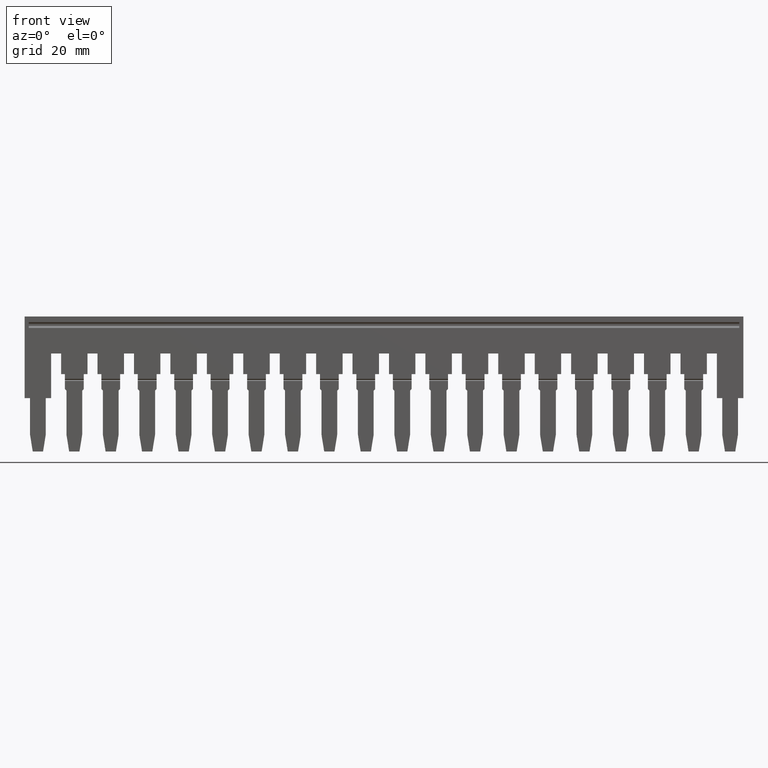
[diagram: clean part render]
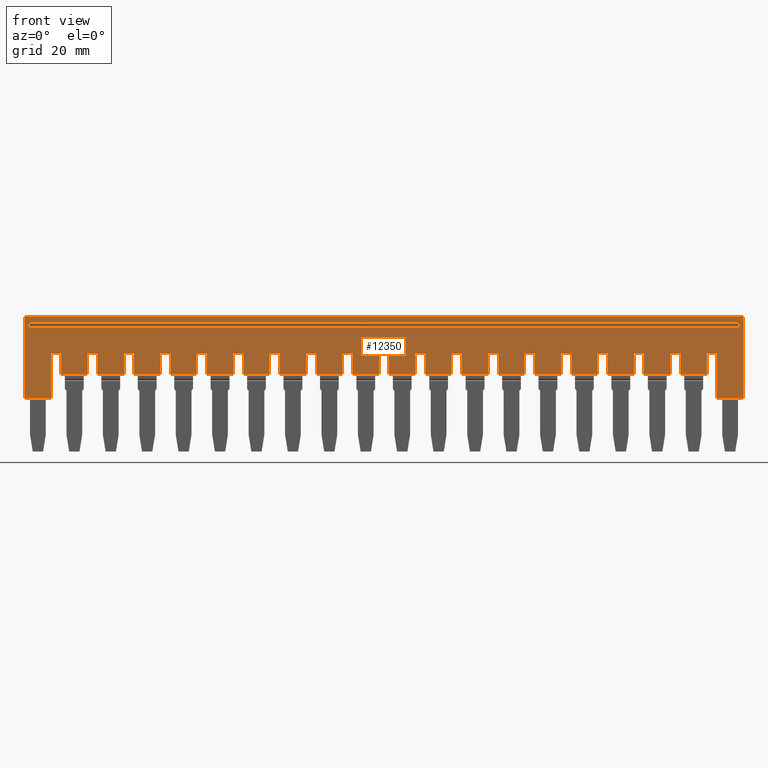
[diagram: same view with one face highlighted and labeled with its STEP entity id]
A machine part, front view. The second image highlights one B-rep face of the part: STEP entity #12350.
In plain terms, the highlighted planar face has unit normal (0, 1, -0).
Its self-contained STEP definition (entity closure, byte-faithful):
#1340=CARTESIAN_POINT('',(2.60716722168537,-23.0749999999984,
26.4950159999974));
#1350=DIRECTION('',(-2.22044604925031E-16,-2.22044604925031E-16,-1.));
#1360=VECTOR('',#1350,1.);
#1370=LINE('',#1340,#1360);
#1380=CARTESIAN_POINT('',(2.60716722168537,-23.0749999999984,
17.3099999999987));
#1390=VERTEX_POINT('',#1380);
#1400=CARTESIAN_POINT('',(2.60716722168537,-23.0749999999984,
12.8099999999987));
#1410=VERTEX_POINT('',#1400);
#1420=EDGE_CURVE('',#1390,#1410,#1370,.T.);
#2390=CARTESIAN_POINT('',(2.60716722168537,-10.1410254037828,
13.5099999999987));
#2400=VERTEX_POINT('',#2390);
#2570=CARTESIAN_POINT('',(2.60716722168537,-11.1389702342646,
13.5099999999987));
#2580=VERTEX_POINT('',#2570);
#2610=CARTESIAN_POINT('',(2.60716722168537,-12.605123999998,
13.5099999999987));
#2620=DIRECTION('',(4.93038065763132E-32,-1.,2.22044604925031E-16));
#2630=VECTOR('',#2620,1.);
#2640=LINE('',#2610,#2630);
#2650=EDGE_CURVE('',#2400,#2580,#2640,.T.);
#5720=CARTESIAN_POINT('',(2.60716722168537,-7.23265099999797,
39.7999898000482));
#5730=DIRECTION('',(1.,0.,-2.22044604925031E-16));
#5740=DIRECTION('',(4.93038065763132E-32,-1.,2.22044604925031E-16));
#5750=AXIS2_PLACEMENT_3D('',#5720,#5730,#5740);
#5760=PLANE('',#5750);
#5770=CARTESIAN_POINT('',(2.6071672216854,-12.605123999998,
135.109999999999));
#5780=DIRECTION('',(-4.93038065763132E-32,1.,-2.22044604925031E-16));
#5790=VECTOR('',#5780,1.);
#5800=LINE('',#5770,#5790);
#5810=CARTESIAN_POINT('',(2.60716722168539,-23.0749999999984,
135.109999999999));
#5820=VERTEX_POINT('',#5810);
#5830=CARTESIAN_POINT('',(2.60716722168539,-9.17499999999835,
135.109999999999));
#5840=VERTEX_POINT('',#5830);
#5850=EDGE_CURVE('',#5820,#5840,#5800,.T.);
#5860=ORIENTED_EDGE('',*,*,#5850,.T.);
#5870=CARTESIAN_POINT('',(2.60716722168539,-23.0749999999984,
125.695015999997));
#5880=DIRECTION('',(-2.22044604925031E-16,-2.22044604925031E-16,-1.));
#5890=VECTOR('',#5880,1.);
#5900=LINE('',#5870,#5890);
#5910=CARTESIAN_POINT('',(2.60716722168539,-23.0749999999984,
130.609999999999));
#5920=VERTEX_POINT('',#5910);
#5930=EDGE_CURVE('',#5820,#5920,#5900,.T.);
#5940=ORIENTED_EDGE('',*,*,#5930,.F.);
#5950=CARTESIAN_POINT('',(2.6071672216854,-12.605123999998,
130.609999999999));
#5960=DIRECTION('',(4.93038065763132E-32,-1.,2.22044604925031E-16));
#5970=VECTOR('',#5960,1.);
#5980=LINE('',#5950,#5970);
#5990=CARTESIAN_POINT('',(2.60716722168539,-15.4749999999984,
130.609999999999));
#6000=VERTEX_POINT('',#5990);
#6010=EDGE_CURVE('',#6000,#5920,#5980,.T.);
#6020=ORIENTED_EDGE('',*,*,#6010,.T.);
#6030=CARTESIAN_POINT('',(2.6071672216854,-15.4749999999984,
131.845015999997));
#6040=DIRECTION('',(2.22044604925031E-16,2.22044604925031E-16,1.));
#6050=VECTOR('',#6040,1.);
#6060=LINE('',#6030,#6050);
#6070=CARTESIAN_POINT('',(2.60716722168539,-15.4749999999984,
128.909999999999));
#6080=VERTEX_POINT('',#6070);
#6090=EDGE_CURVE('',#6080,#6000,#6060,.T.);
#6100=ORIENTED_EDGE('',*,*,#6090,.T.);
#6110=CARTESIAN_POINT('',(2.60716722168539,2.04458672214969E-12,
128.909999999999));
#6120=DIRECTION('',(-4.93038065763132E-32,1.,-2.22044604925031E-16));
#6130=VECTOR('',#6120,1.);
#6140=LINE('',#6110,#6130);
#6150=CARTESIAN_POINT('',(2.60716722168539,-18.9749999999984,
128.909999999999));
#6160=VERTEX_POINT('',#6150);
#6170=EDGE_CURVE('',#6160,#6080,#6140,.T.);
#6180=ORIENTED_EDGE('',*,*,#6170,.T.);
#6190=CARTESIAN_POINT('',(2.6071672216854,-18.9749999999983,
172.719999999997));
#6200=DIRECTION('',(-2.22044604925031E-16,-2.22044604925031E-16,-1.));
#6210=VECTOR('',#6200,1.);
#6220=LINE('',#6190,#6210);
#6230=CARTESIAN_POINT('',(2.60716722168539,-18.9749999999984,
124.409999999999));
#6240=VERTEX_POINT('',#6230);
#6250=EDGE_CURVE('',#6160,#6240,#6220,.T.);
#6260=ORIENTED_EDGE('',*,*,#6250,.F.);
#6270=CARTESIAN_POINT('',(2.60716722168539,2.04281036531029E-12,
124.409999999999));
#6280=DIRECTION('',(4.93038065763132E-32,-1.,2.22044604925031E-16));
#6290=VECTOR('',#6280,1.);
#6300=LINE('',#6270,#6290);
#6310=CARTESIAN_POINT('',(2.60716722168539,-15.4749999999984,
124.409999999999));
#6320=VERTEX_POINT('',#6310);
#6330=EDGE_CURVE('',#6320,#6240,#6300,.T.);
#6340=ORIENTED_EDGE('',*,*,#6330,.T.);
#6350=CARTESIAN_POINT('',(2.6071672216854,-15.4749999999984,
125.645015999997));
#6360=DIRECTION('',(2.22044604925031E-16,2.22044604925031E-16,1.));
#6370=VECTOR('',#6360,1.);
#6380=LINE('',#6350,#6370);
#6390=CARTESIAN_POINT('',(2.60716722168539,-15.4749999999984,
122.709999999999));
#6400=VERTEX_POINT('',#6390);
#6410=EDGE_CURVE('',#6400,#6320,#6380,.T.);
#6420=ORIENTED_EDGE('',*,*,#6410,.T.);
#6430=CARTESIAN_POINT('',(2.60716722168539,2.04281036531029E-12,
122.709999999999));
#6440=DIRECTION('',(-4.93038065763132E-32,1.,-2.22044604925031E-16));
#6450=VECTOR('',#6440,1.);
#6460=LINE('',#6430,#6450);
#6470=CARTESIAN_POINT('',(2.60716722168539,-18.9749999999984,
122.709999999999));
#6480=VERTEX_POINT('',#6470);
#6490=EDGE_CURVE('',#6480,#6400,#6460,.T.);
#6500=ORIENTED_EDGE('',*,*,#6490,.T.);
#6510=CARTESIAN_POINT('',(2.6071672216854,-18.9749999999983,
166.519999999997));
#6520=DIRECTION('',(-2.22044604925031E-16,-2.22044604925031E-16,-1.));
#6530=VECTOR('',#6520,1.);
#6540=LINE('',#6510,#6530);
#6550=CARTESIAN_POINT('',(2.60716722168539,-18.9749999999984,
118.209999999999));
#6560=VERTEX_POINT('',#6550);
#6570=EDGE_CURVE('',#6480,#6560,#6540,.T.);
#6580=ORIENTED_EDGE('',*,*,#6570,.F.);
#6590=CARTESIAN_POINT('',(2.60716722168539,2.04281036531029E-12,
118.209999999999));
#6600=DIRECTION('',(4.93038065763132E-32,-1.,2.22044604925031E-16));
#6610=VECTOR('',#6600,1.);
#6620=LINE('',#6590,#6610);
#6630=CARTESIAN_POINT('',(2.60716722168539,-15.4749999999984,
118.209999999999));
#6640=VERTEX_POINT('',#6630);
#6650=EDGE_CURVE('',#6640,#6560,#6620,.T.);
#6660=ORIENTED_EDGE('',*,*,#6650,.T.);
#6670=CARTESIAN_POINT('',(2.6071672216854,-15.4749999999984,
119.445015999997));
#6680=DIRECTION('',(2.22044604925031E-16,2.22044604925031E-16,1.));
#6690=VECTOR('',#6680,1.);
#6700=LINE('',#6670,#6690);
#6710=CARTESIAN_POINT('',(2.60716722168539,-15.4749999999984,
116.509999999999));
#6720=VERTEX_POINT('',#6710);
#6730=EDGE_CURVE('',#6720,#6640,#6700,.T.);
#6740=ORIENTED_EDGE('',*,*,#6730,.T.);
#6750=CARTESIAN_POINT('',(2.60716722168539,2.04103400847089E-12,
116.509999999999));
#6760=DIRECTION('',(-4.93038065763132E-32,1.,-2.22044604925031E-16));
#6770=VECTOR('',#6760,1.);
#6780=LINE('',#6750,#6770);
#6790=CARTESIAN_POINT('',(2.60716722168539,-18.9749999999984,
116.509999999999));
#6800=VERTEX_POINT('',#6790);
#6810=EDGE_CURVE('',#6800,#6720,#6780,.T.);
#6820=ORIENTED_EDGE('',*,*,#6810,.T.);
#6830=CARTESIAN_POINT('',(2.6071672216854,-18.9749999999983,
160.319999999997));
#6840=DIRECTION('',(-2.22044604925031E-16,-2.22044604925031E-16,-1.));
#6850=VECTOR('',#6840,1.);
#6860=LINE('',#6830,#6850);
#6870=CARTESIAN_POINT('',(2.60716722168539,-18.9749999999984,
112.009999999999));
#6880=VERTEX_POINT('',#6870);
#6890=EDGE_CURVE('',#6800,#6880,#6860,.T.);
#6900=ORIENTED_EDGE('',*,*,#6890,.F.);
#6910=CARTESIAN_POINT('',(2.60716722168539,2.04103400847089E-12,
112.009999999999));
#6920=DIRECTION('',(4.93038065763132E-32,-1.,2.22044604925031E-16));
#6930=VECTOR('',#6920,1.);
#6940=LINE('',#6910,#6930);
#6950=CARTESIAN_POINT('',(2.60716722168539,-15.4749999999984,
112.009999999999));
#6960=VERTEX_POINT('',#6950);
#6970=EDGE_CURVE('',#6960,#6880,#6940,.T.);
#6980=ORIENTED_EDGE('',*,*,#6970,.T.);
#6990=CARTESIAN_POINT('',(2.6071672216854,-15.4749999999984,
119.445015999997));
#7000=DIRECTION('',(2.22044604925031E-16,2.22044604925031E-16,1.));
#7010=VECTOR('',#7000,1.);
#7020=LINE('',#6990,#7010);
#7030=CARTESIAN_POINT('',(2.60716722168539,-15.4749999999984,
110.309999999999));
#7040=VERTEX_POINT('',#7030);
#7050=EDGE_CURVE('',#7040,#6960,#7020,.T.);
#7060=ORIENTED_EDGE('',*,*,#7050,.T.);
#7070=CARTESIAN_POINT('',(2.60716722168539,2.04103400847089E-12,
110.309999999999));
#7080=DIRECTION('',(-4.93038065763132E-32,1.,-2.22044604925031E-16));
#7090=VECTOR('',#7080,1.);
#7100=LINE('',#7070,#7090);
#7110=CARTESIAN_POINT('',(2.60716722168539,-18.9749999999984,
110.309999999999));
#7120=VERTEX_POINT('',#7110);
#7130=EDGE_CURVE('',#7120,#7040,#7100,.T.);
#7140=ORIENTED_EDGE('',*,*,#7130,.T.);
#7150=CARTESIAN_POINT('',(2.6071672216854,-18.9749999999983,
154.119999999997));
#7160=DIRECTION('',(-2.22044604925031E-16,-2.22044604925031E-16,-1.));
#7170=VECTOR('',#7160,1.);
#7180=LINE('',#7150,#7170);
#7190=CARTESIAN_POINT('',(2.60716722168539,-18.9749999999984,
105.809999999999));
#7200=VERTEX_POINT('',#7190);
#7210=EDGE_CURVE('',#7120,#7200,#7180,.T.);
#7220=ORIENTED_EDGE('',*,*,#7210,.F.);
#7230=CARTESIAN_POINT('',(2.60716722168539,2.03925765163149E-12,
105.809999999999));
#7240=DIRECTION('',(4.93038065763132E-32,-1.,2.22044604925031E-16));
#7250=VECTOR('',#7240,1.);
#7260=LINE('',#7230,#7250);
#7270=CARTESIAN_POINT('',(2.60716722168539,-15.4749999999984,
105.809999999999));
#7280=VERTEX_POINT('',#7270);
#7290=EDGE_CURVE('',#7280,#7200,#7260,.T.);
#7300=ORIENTED_EDGE('',*,*,#7290,.T.);
#7310=CARTESIAN_POINT('',(2.6071672216854,-15.4749999999984,
107.045015999997));
#7320=DIRECTION('',(2.22044604925031E-16,2.22044604925031E-16,1.));
#7330=VECTOR('',#7320,1.);
#7340=LINE('',#7310,#7330);
#7350=CARTESIAN_POINT('',(2.60716722168539,-15.4749999999984,
104.109999999999));
#7360=VERTEX_POINT('',#7350);
#7370=EDGE_CURVE('',#7360,#7280,#7340,.T.);
#7380=ORIENTED_EDGE('',*,*,#7370,.T.);
#7390=CARTESIAN_POINT('',(2.60716722168539,2.03925765163149E-12,
104.109999999999));
#7400=DIRECTION('',(-4.93038065763132E-32,1.,-2.22044604925031E-16));
#7410=VECTOR('',#7400,1.);
#7420=LINE('',#7390,#7410);
#7430=CARTESIAN_POINT('',(2.60716722168539,-18.9749999999984,
104.109999999999));
#7440=VERTEX_POINT('',#7430);
#7450=EDGE_CURVE('',#7440,#7360,#7420,.T.);
#7460=ORIENTED_EDGE('',*,*,#7450,.T.);
#7470=CARTESIAN_POINT('',(2.6071672216854,-18.9749999999983,
147.919999999997));
#7480=DIRECTION('',(-2.22044604925031E-16,-2.22044604925031E-16,-1.));
#7490=VECTOR('',#7480,1.);
#7500=LINE('',#7470,#7490);
#7510=CARTESIAN_POINT('',(2.60716722168539,-18.9749999999984,
99.6099999999987));
#7520=VERTEX_POINT('',#7510);
#7530=EDGE_CURVE('',#7440,#7520,#7500,.T.);
#7540=ORIENTED_EDGE('',*,*,#7530,.F.);
#7550=CARTESIAN_POINT('',(2.60716722168539,2.03748129479209E-12,
99.6099999999986));
#7560=DIRECTION('',(4.93038065763132E-32,-1.,2.22044604925031E-16));
#7570=VECTOR('',#7560,1.);
#7580=LINE('',#7550,#7570);
#7590=CARTESIAN_POINT('',(2.60716722168539,-15.4749999999984,
99.6099999999987));
#7600=VERTEX_POINT('',#7590);
#7610=EDGE_CURVE('',#7600,#7520,#7580,.T.);
#7620=ORIENTED_EDGE('',*,*,#7610,.T.);
#7630=CARTESIAN_POINT('',(2.6071672216854,-15.4749999999984,
100.845015999997));
#7640=DIRECTION('',(2.22044604925031E-16,2.22044604925031E-16,1.));
#7650=VECTOR('',#7640,1.);
#7660=LINE('',#7630,#7650);
#7670=CARTESIAN_POINT('',(2.60716722168539,-15.4749999999984,
97.9099999999987));
#7680=VERTEX_POINT('',#7670);
#7690=EDGE_CURVE('',#7680,#7600,#7660,.T.);
#7700=ORIENTED_EDGE('',*,*,#7690,.T.);
#7710=CARTESIAN_POINT('',(2.60716722168539,2.03748129479209E-12,
97.9099999999987));
#7720=DIRECTION('',(-4.93038065763132E-32,1.,-2.22044604925031E-16));
#7730=VECTOR('',#7720,1.);
#7740=LINE('',#7710,#7730);
#7750=CARTESIAN_POINT('',(2.60716722168539,-18.9749999999984,
97.9099999999987));
#7760=VERTEX_POINT('',#7750);
#7770=EDGE_CURVE('',#7760,#7680,#7740,.T.);
#7780=ORIENTED_EDGE('',*,*,#7770,.T.);
#7790=CARTESIAN_POINT('',(2.6071672216854,-18.9749999999984,
141.719999999997));
#7800=DIRECTION('',(-2.22044604925031E-16,-2.22044604925031E-16,-1.));
#7810=VECTOR('',#7800,1.);
#7820=LINE('',#7790,#7810);
#7830=CARTESIAN_POINT('',(2.60716722168539,-18.9749999999984,
93.4099999999987));
#7840=VERTEX_POINT('',#7830);
#7850=EDGE_CURVE('',#7760,#7840,#7820,.T.);
#7860=ORIENTED_EDGE('',*,*,#7850,.F.);
#7870=CARTESIAN_POINT('',(2.60716722168539,2.03570493795269E-12,
93.4099999999987));
#7880=DIRECTION('',(4.93038065763132E-32,-1.,2.22044604925031E-16));
#7890=VECTOR('',#7880,1.);
#7900=LINE('',#7870,#7890);
#7910=CARTESIAN_POINT('',(2.60716722168539,-15.4749999999984,
93.4099999999987));
#7920=VERTEX_POINT('',#7910);
#7930=EDGE_CURVE('',#7920,#7840,#7900,.T.);
#7940=ORIENTED_EDGE('',*,*,#7930,.T.);
#7950=CARTESIAN_POINT('',(2.60716722168539,-15.4749999999984,
100.845015999997));
#7960=DIRECTION('',(2.22044604925031E-16,2.22044604925031E-16,1.));
#7970=VECTOR('',#7960,1.);
#7980=LINE('',#7950,#7970);
#7990=CARTESIAN_POINT('',(2.60716722168539,-15.4749999999984,
91.7099999999987));
#8000=VERTEX_POINT('',#7990);
#8010=EDGE_CURVE('',#8000,#7920,#7980,.T.);
#8020=ORIENTED_EDGE('',*,*,#8010,.T.);
#8030=CARTESIAN_POINT('',(2.60716722168539,2.03570493795269E-12,
91.7099999999987));
#8040=DIRECTION('',(-4.93038065763132E-32,1.,-2.22044604925031E-16));
#8050=VECTOR('',#8040,1.);
#8060=LINE('',#8030,#8050);
#8070=CARTESIAN_POINT('',(2.60716722168539,-18.9749999999984,
91.7099999999987));
#8080=VERTEX_POINT('',#8070);
#8090=EDGE_CURVE('',#8080,#8000,#8060,.T.);
#8100=ORIENTED_EDGE('',*,*,#8090,.T.);
#8110=CARTESIAN_POINT('',(2.60716722168539,-18.9749999999984,
135.519999999997));
#8120=DIRECTION('',(-2.22044604925031E-16,-2.22044604925031E-16,-1.));
#8130=VECTOR('',#8120,1.);
#8140=LINE('',#8110,#8130);
#8150=CARTESIAN_POINT('',(2.60716722168538,-18.9749999999984,
87.2099999999987));
#8160=VERTEX_POINT('',#8150);
#8170=EDGE_CURVE('',#8080,#8160,#8140,.T.);
#8180=ORIENTED_EDGE('',*,*,#8170,.F.);
#8190=CARTESIAN_POINT('',(2.60716722168538,2.03570493795269E-12,
87.2099999999987));
#8200=DIRECTION('',(4.93038065763132E-32,-1.,2.22044604925031E-16));
#8210=VECTOR('',#8200,1.);
#8220=LINE('',#8190,#8210);
#8230=CARTESIAN_POINT('',(2.60716722168538,-15.4749999999984,
87.2099999999987));
#8240=VERTEX_POINT('',#8230);
#8250=EDGE_CURVE('',#8240,#8160,#8220,.T.);
#8260=ORIENTED_EDGE('',*,*,#8250,.T.);
#8270=CARTESIAN_POINT('',(2.60716722168539,-15.4749999999984,
94.6450159999974));
#8280=DIRECTION('',(2.22044604925031E-16,2.22044604925031E-16,1.));
#8290=VECTOR('',#8280,1.);
#8300=LINE('',#8270,#8290);
#8310=CARTESIAN_POINT('',(2.60716722168538,-15.4749999999984,
85.5099999999987));
#8320=VERTEX_POINT('',#8310);
#8330=EDGE_CURVE('',#8320,#8240,#8300,.T.);
#8340=ORIENTED_EDGE('',*,*,#8330,.T.);
#8350=CARTESIAN_POINT('',(2.60716722168538,2.03392858111329E-12,
85.5099999999987));
#8360=DIRECTION('',(-4.93038065763132E-32,1.,-2.22044604925031E-16));
#8370=VECTOR('',#8360,1.);
#8380=LINE('',#8350,#8370);
#8390=CARTESIAN_POINT('',(2.60716722168538,-18.9749999999984,
85.5099999999987));
#8400=VERTEX_POINT('',#8390);
#8410=EDGE_CURVE('',#8400,#8320,#8380,.T.);
#8420=ORIENTED_EDGE('',*,*,#8410,.T.);
#8430=CARTESIAN_POINT('',(2.60716722168539,-18.9749999999984,
129.319999999997));
#8440=DIRECTION('',(-2.22044604925031E-16,-2.22044604925031E-16,-1.));
#8450=VECTOR('',#8440,1.);
#8460=LINE('',#8430,#8450);
#8470=CARTESIAN_POINT('',(2.60716722168538,-18.9749999999984,
81.0099999999987));
#8480=VERTEX_POINT('',#8470);
#8490=EDGE_CURVE('',#8400,#8480,#8460,.T.);
#8500=ORIENTED_EDGE('',*,*,#8490,.F.);
#8510=CARTESIAN_POINT('',(2.60716722168538,2.03392858111329E-12,
81.0099999999987));
#8520=DIRECTION('',(4.93038065763132E-32,-1.,2.22044604925031E-16));
#8530=VECTOR('',#8520,1.);
#8540=LINE('',#8510,#8530);
#8550=CARTESIAN_POINT('',(2.60716722168538,-15.4749999999984,
81.0099999999987));
#8560=VERTEX_POINT('',#8550);
#8570=EDGE_CURVE('',#8560,#8480,#8540,.T.);
#8580=ORIENTED_EDGE('',*,*,#8570,.T.);
#8590=CARTESIAN_POINT('',(2.60716722168539,-15.4749999999984,
82.2450159999974));
#8600=DIRECTION('',(2.22044604925031E-16,2.22044604925031E-16,1.));
#8610=VECTOR('',#8600,1.);
#8620=LINE('',#8590,#8610);
#8630=CARTESIAN_POINT('',(2.60716722168538,-15.4749999999984,
79.3099999999987));
#8640=VERTEX_POINT('',#8630);
#8650=EDGE_CURVE('',#8640,#8560,#8620,.T.);
#8660=ORIENTED_EDGE('',*,*,#8650,.T.);
#8670=CARTESIAN_POINT('',(2.60716722168538,2.03392858111329E-12,
79.3099999999987));
#8680=DIRECTION('',(-4.93038065763132E-32,1.,-2.22044604925031E-16));
#8690=VECTOR('',#8680,1.);
#8700=LINE('',#8670,#8690);
#8710=CARTESIAN_POINT('',(2.60716722168538,-18.9749999999984,
79.3099999999987));
#8720=VERTEX_POINT('',#8710);
#8730=EDGE_CURVE('',#8720,#8640,#8700,.T.);
#8740=ORIENTED_EDGE('',*,*,#8730,.T.);
#8750=CARTESIAN_POINT('',(2.60716722168539,-18.9749999999984,
123.119999999997));
#8760=DIRECTION('',(-2.22044604925031E-16,-2.22044604925031E-16,-1.));
#8770=VECTOR('',#8760,1.);
#8780=LINE('',#8750,#8770);
#8790=CARTESIAN_POINT('',(2.60716722168538,-18.9749999999984,
74.8099999999987));
#8800=VERTEX_POINT('',#8790);
#8810=EDGE_CURVE('',#8720,#8800,#8780,.T.);
#8820=ORIENTED_EDGE('',*,*,#8810,.F.);
#8830=CARTESIAN_POINT('',(2.60716722168538,2.03215222427389E-12,
74.8099999999987));
#8840=DIRECTION('',(4.93038065763132E-32,-1.,2.22044604925031E-16));
#8850=VECTOR('',#8840,1.);
#8860=LINE('',#8830,#8850);
#8870=CARTESIAN_POINT('',(2.60716722168538,-15.4749999999984,
74.8099999999987));
#8880=VERTEX_POINT('',#8870);
#8890=EDGE_CURVE('',#8880,#8800,#8860,.T.);
#8900=ORIENTED_EDGE('',*,*,#8890,.T.);
#8910=CARTESIAN_POINT('',(2.60716722168539,-15.4749999999984,
76.0450159999974));
#8920=DIRECTION('',(2.22044604925031E-16,2.22044604925031E-16,1.));
#8930=VECTOR('',#8920,1.);
#8940=LINE('',#8910,#8930);
#8950=CARTESIAN_POINT('',(2.60716722168538,-15.4749999999984,
73.1099999999987));
#8960=VERTEX_POINT('',#8950);
#8970=EDGE_CURVE('',#8960,#8880,#8940,.T.);
#8980=ORIENTED_EDGE('',*,*,#8970,.T.);
#8990=CARTESIAN_POINT('',(2.60716722168538,2.03215222427389E-12,
73.1099999999987));
#9000=DIRECTION('',(-4.93038065763132E-32,1.,-2.22044604925031E-16));
#9010=VECTOR('',#9000,1.);
#9020=LINE('',#8990,#9010);
#9030=CARTESIAN_POINT('',(2.60716722168538,-18.9749999999984,
73.1099999999987));
#9040=VERTEX_POINT('',#9030);
#9050=EDGE_CURVE('',#9040,#8960,#9020,.T.);
#9060=ORIENTED_EDGE('',*,*,#9050,.T.);
#9070=CARTESIAN_POINT('',(2.60716722168539,-18.9749999999984,
116.919999999997));
#9080=DIRECTION('',(-2.22044604925031E-16,-2.22044604925031E-16,-1.));
#9090=VECTOR('',#9080,1.);
#9100=LINE('',#9070,#9090);
#9110=CARTESIAN_POINT('',(2.60716722168538,-18.9749999999984,
68.6099999999987));
#9120=VERTEX_POINT('',#9110);
#9130=EDGE_CURVE('',#9040,#9120,#9100,.T.);
#9140=ORIENTED_EDGE('',*,*,#9130,.F.);
#9150=CARTESIAN_POINT('',(2.60716722168538,2.03037586743449E-12,
68.6099999999986));
#9160=DIRECTION('',(4.93038065763132E-32,-1.,2.22044604925031E-16));
#9170=VECTOR('',#9160,1.);
#9180=LINE('',#9150,#9170);
#9190=CARTESIAN_POINT('',(2.60716722168538,-15.4749999999984,
68.6099999999987));
#9200=VERTEX_POINT('',#9190);
#9210=EDGE_CURVE('',#9200,#9120,#9180,.T.);
#9220=ORIENTED_EDGE('',*,*,#9210,.T.);
#9230=CARTESIAN_POINT('',(2.60716722168539,-15.4749999999984,
69.8450159999974));
#9240=DIRECTION('',(2.22044604925031E-16,2.22044604925031E-16,1.));
#9250=VECTOR('',#9240,1.);
#9260=LINE('',#9230,#9250);
#9270=CARTESIAN_POINT('',(2.60716722168538,-15.4749999999984,
66.9099999999987));
#9280=VERTEX_POINT('',#9270);
#9290=EDGE_CURVE('',#9280,#9200,#9260,.T.);
#9300=ORIENTED_EDGE('',*,*,#9290,.T.);
#9310=CARTESIAN_POINT('',(2.60716722168538,2.03037586743449E-12,
66.9099999999987));
#9320=DIRECTION('',(-4.93038065763132E-32,1.,-2.22044604925031E-16));
#9330=VECTOR('',#9320,1.);
#9340=LINE('',#9310,#9330);
#9350=CARTESIAN_POINT('',(2.60716722168538,-18.9749999999984,
66.9099999999987));
#9360=VERTEX_POINT('',#9350);
#9370=EDGE_CURVE('',#9360,#9280,#9340,.T.);
#9380=ORIENTED_EDGE('',*,*,#9370,.T.);
#9390=CARTESIAN_POINT('',(2.60716722168539,-18.9749999999984,
110.719999999997));
#9400=DIRECTION('',(-2.22044604925031E-16,-2.22044604925031E-16,-1.));
#9410=VECTOR('',#9400,1.);
#9420=LINE('',#9390,#9410);
#9430=CARTESIAN_POINT('',(2.60716722168538,-18.9749999999984,
62.4099999999987));
#9440=VERTEX_POINT('',#9430);
#9450=EDGE_CURVE('',#9360,#9440,#9420,.T.);
#9460=ORIENTED_EDGE('',*,*,#9450,.F.);
#9470=CARTESIAN_POINT('',(2.60716722168538,2.03037586743449E-12,
62.4099999999987));
#9480=DIRECTION('',(4.93038065763132E-32,-1.,2.22044604925031E-16));
#9490=VECTOR('',#9480,1.);
#9500=LINE('',#9470,#9490);
#9510=CARTESIAN_POINT('',(2.60716722168538,-15.4749999999984,
62.4099999999987));
#9520=VERTEX_POINT('',#9510);
#9530=EDGE_CURVE('',#9520,#9440,#9500,.T.);
#9540=ORIENTED_EDGE('',*,*,#9530,.T.);
#9550=CARTESIAN_POINT('',(2.60716722168539,-15.4749999999984,
69.8450159999974));
#9560=DIRECTION('',(2.22044604925031E-16,2.22044604925031E-16,1.));
#9570=VECTOR('',#9560,1.);
#9580=LINE('',#9550,#9570);
#9590=CARTESIAN_POINT('',(2.60716722168538,-15.4749999999984,
60.7099999999987));
#9600=VERTEX_POINT('',#9590);
#9610=EDGE_CURVE('',#9600,#9520,#9580,.T.);
#9620=ORIENTED_EDGE('',*,*,#9610,.T.);
#9630=CARTESIAN_POINT('',(2.60716722168538,2.02859951059509E-12,
60.7099999999987));
#9640=DIRECTION('',(-4.93038065763132E-32,1.,-2.22044604925031E-16));
#9650=VECTOR('',#9640,1.);
#9660=LINE('',#9630,#9650);
#9670=CARTESIAN_POINT('',(2.60716722168538,-18.9749999999984,
60.7099999999987));
#9680=VERTEX_POINT('',#9670);
#9690=EDGE_CURVE('',#9680,#9600,#9660,.T.);
#9700=ORIENTED_EDGE('',*,*,#9690,.T.);
#9710=CARTESIAN_POINT('',(2.60716722168539,-18.9749999999984,
104.519999999997));
#9720=DIRECTION('',(-2.22044604925031E-16,-2.22044604925031E-16,-1.));
#9730=VECTOR('',#9720,1.);
#9740=LINE('',#9710,#9730);
#9750=CARTESIAN_POINT('',(2.60716722168538,-18.9749999999984,
56.2099999999987));
#9760=VERTEX_POINT('',#9750);
#9770=EDGE_CURVE('',#9680,#9760,#9740,.T.);
#9780=ORIENTED_EDGE('',*,*,#9770,.F.);
#9790=CARTESIAN_POINT('',(2.60716722168538,2.02859951059509E-12,
56.2099999999987));
#9800=DIRECTION('',(4.93038065763132E-32,-1.,2.22044604925031E-16));
#9810=VECTOR('',#9800,1.);
#9820=LINE('',#9790,#9810);
#9830=CARTESIAN_POINT('',(2.60716722168538,-15.4749999999984,
56.2099999999987));
#9840=VERTEX_POINT('',#9830);
#9850=EDGE_CURVE('',#9840,#9760,#9820,.T.);
#9860=ORIENTED_EDGE('',*,*,#9850,.T.);
#9870=CARTESIAN_POINT('',(2.60716722168539,-15.4749999999984,
57.4450159999974));
#9880=DIRECTION('',(2.22044604925031E-16,2.22044604925031E-16,1.));
#9890=VECTOR('',#9880,1.);
#9900=LINE('',#9870,#9890);
#9910=CARTESIAN_POINT('',(2.60716722168538,-15.4749999999984,
54.5099999999987));
#9920=VERTEX_POINT('',#9910);
#9930=EDGE_CURVE('',#9920,#9840,#9900,.T.);
#9940=ORIENTED_EDGE('',*,*,#9930,.T.);
#9950=CARTESIAN_POINT('',(2.60716722168538,2.02859951059509E-12,
54.5099999999987));
#9960=DIRECTION('',(-4.93038065763132E-32,1.,-2.22044604925031E-16));
#9970=VECTOR('',#9960,1.);
#9980=LINE('',#9950,#9970);
#9990=CARTESIAN_POINT('',(2.60716722168538,-18.9749999999984,
54.5099999999987));
#10000=VERTEX_POINT('',#9990);
#10010=EDGE_CURVE('',#10000,#9920,#9980,.T.);
#10020=ORIENTED_EDGE('',*,*,#10010,.T.);
#10030=CARTESIAN_POINT('',(2.60716722168539,-18.9749999999984,
98.3199999999974));
#10040=DIRECTION('',(-2.22044604925031E-16,-2.22044604925031E-16,-1.));
#10050=VECTOR('',#10040,1.);
#10060=LINE('',#10030,#10050);
#10070=CARTESIAN_POINT('',(2.60716722168538,-18.9749999999984,
50.0099999999987));
#10080=VERTEX_POINT('',#10070);
#10090=EDGE_CURVE('',#10000,#10080,#10060,.T.);
#10100=ORIENTED_EDGE('',*,*,#10090,.F.);
#10110=CARTESIAN_POINT('',(2.60716722168538,2.02682315375569E-12,
50.0099999999987));
#10120=DIRECTION('',(4.93038065763132E-32,-1.,2.22044604925031E-16));
#10130=VECTOR('',#10120,1.);
#10140=LINE('',#10110,#10130);
#10150=CARTESIAN_POINT('',(2.60716722168538,-15.4749999999984,
50.0099999999987));
#10160=VERTEX_POINT('',#10150);
#10170=EDGE_CURVE('',#10160,#10080,#10140,.T.);
#10180=ORIENTED_EDGE('',*,*,#10170,.T.);
#10190=CARTESIAN_POINT('',(2.60716722168539,-15.4749999999984,
57.4450159999974));
#10200=DIRECTION('',(2.22044604925031E-16,2.22044604925031E-16,1.));
#10210=VECTOR('',#10200,1.);
#10220=LINE('',#10190,#10210);
#10230=CARTESIAN_POINT('',(2.60716722168538,-15.4749999999984,
48.3099999999987));
#10240=VERTEX_POINT('',#10230);
#10250=EDGE_CURVE('',#10240,#10160,#10220,.T.);
#10260=ORIENTED_EDGE('',*,*,#10250,.T.);
#10270=CARTESIAN_POINT('',(2.60716722168538,2.02682315375569E-12,
48.3099999999987));
#10280=DIRECTION('',(-4.93038065763132E-32,1.,-2.22044604925031E-16));
#10290=VECTOR('',#10280,1.);
#10300=LINE('',#10270,#10290);
#10310=CARTESIAN_POINT('',(2.60716722168538,-18.9749999999984,
48.3099999999987));
#10320=VERTEX_POINT('',#10310);
#10330=EDGE_CURVE('',#10320,#10240,#10300,.T.);
#10340=ORIENTED_EDGE('',*,*,#10330,.T.);
#10350=CARTESIAN_POINT('',(2.60716722168539,-18.9749999999984,
92.1199999999974));
#10360=DIRECTION('',(-2.22044604925031E-16,-2.22044604925031E-16,-1.));
#10370=VECTOR('',#10360,1.);
#10380=LINE('',#10350,#10370);
#10390=CARTESIAN_POINT('',(2.60716722168537,-18.9749999999984,
43.8099999999987));
#10400=VERTEX_POINT('',#10390);
#10410=EDGE_CURVE('',#10320,#10400,#10380,.T.);
#10420=ORIENTED_EDGE('',*,*,#10410,.F.);
#10430=CARTESIAN_POINT('',(2.60716722168537,2.02504679691629E-12,
43.8099999999987));
#10440=DIRECTION('',(4.93038065763132E-32,-1.,2.22044604925031E-16));
#10450=VECTOR('',#10440,1.);
#10460=LINE('',#10430,#10450);
#10470=CARTESIAN_POINT('',(2.60716722168537,-15.4749999999984,
43.8099999999987));
#10480=VERTEX_POINT('',#10470);
#10490=EDGE_CURVE('',#10480,#10400,#10460,.T.);
#10500=ORIENTED_EDGE('',*,*,#10490,.T.);
#10510=CARTESIAN_POINT('',(2.60716722168538,-15.4749999999984,
51.2450159999974));
#10520=DIRECTION('',(2.22044604925031E-16,2.22044604925031E-16,1.));
#10530=VECTOR('',#10520,1.);
#10540=LINE('',#10510,#10530);
#10550=CARTESIAN_POINT('',(2.60716722168537,-15.4749999999984,
42.1099999999987));
#10560=VERTEX_POINT('',#10550);
#10570=EDGE_CURVE('',#10560,#10480,#10540,.T.);
#10580=ORIENTED_EDGE('',*,*,#10570,.T.);
#10590=CARTESIAN_POINT('',(2.60716722168537,2.02504679691629E-12,
42.1099999999987));
#10600=DIRECTION('',(-4.93038065763132E-32,1.,-2.22044604925031E-16));
#10610=VECTOR('',#10600,1.);
#10620=LINE('',#10590,#10610);
#10630=CARTESIAN_POINT('',(2.60716722168537,-18.9749999999984,
42.1099999999987));
#10640=VERTEX_POINT('',#10630);
#10650=EDGE_CURVE('',#10640,#10560,#10620,.T.);
#10660=ORIENTED_EDGE('',*,*,#10650,.T.);
#10670=CARTESIAN_POINT('',(2.60716722168538,-18.9749999999984,
85.9199999999974));
#10680=DIRECTION('',(-2.22044604925031E-16,-2.22044604925031E-16,-1.));
#10690=VECTOR('',#10680,1.);
#10700=LINE('',#10670,#10690);
#10710=CARTESIAN_POINT('',(2.60716722168537,-18.9749999999984,
37.6099999999987));
#10720=VERTEX_POINT('',#10710);
#10730=EDGE_CURVE('',#10640,#10720,#10700,.T.);
#10740=ORIENTED_EDGE('',*,*,#10730,.F.);
#10750=CARTESIAN_POINT('',(2.60716722168537,2.02504679691629E-12,
37.6099999999987));
#10760=DIRECTION('',(4.93038065763132E-32,-1.,2.22044604925031E-16));
#10770=VECTOR('',#10760,1.);
#10780=LINE('',#10750,#10770);
#10790=CARTESIAN_POINT('',(2.60716722168537,-15.4749999999984,
37.6099999999987));
#10800=VERTEX_POINT('',#10790);
#10810=EDGE_CURVE('',#10800,#10720,#10780,.T.);
#10820=ORIENTED_EDGE('',*,*,#10810,.T.);
#10830=CARTESIAN_POINT('',(2.60716722168538,-15.4749999999984,
38.8450159999974));
#10840=DIRECTION('',(2.22044604925031E-16,2.22044604925031E-16,1.));
#10850=VECTOR('',#10840,1.);
#10860=LINE('',#10830,#10850);
#10870=CARTESIAN_POINT('',(2.60716722168537,-15.4749999999984,
35.9099999999987));
#10880=VERTEX_POINT('',#10870);
#10890=EDGE_CURVE('',#10880,#10800,#10860,.T.);
#10900=ORIENTED_EDGE('',*,*,#10890,.T.);
#10910=CARTESIAN_POINT('',(2.60716722168537,2.02327044007689E-12,
35.9099999999987));
#10920=DIRECTION('',(-4.93038065763132E-32,1.,-2.22044604925031E-16));
#10930=VECTOR('',#10920,1.);
#10940=LINE('',#10910,#10930);
#10950=CARTESIAN_POINT('',(2.60716722168537,-18.9749999999984,
35.9099999999987));
#10960=VERTEX_POINT('',#10950);
#10970=EDGE_CURVE('',#10960,#10880,#10940,.T.);
#10980=ORIENTED_EDGE('',*,*,#10970,.T.);
#10990=CARTESIAN_POINT('',(2.60716722168538,-18.9749999999984,
79.7199999999974));
#11000=DIRECTION('',(-2.22044604925031E-16,-2.22044604925031E-16,-1.));
#11010=VECTOR('',#11000,1.);
#11020=LINE('',#10990,#11010);
#11030=CARTESIAN_POINT('',(2.60716722168537,-18.9749999999984,
31.4099999999987));
#11040=VERTEX_POINT('',#11030);
#11050=EDGE_CURVE('',#10960,#11040,#11020,.T.);
#11060=ORIENTED_EDGE('',*,*,#11050,.F.);
#11070=CARTESIAN_POINT('',(2.60716722168537,2.02327044007689E-12,
31.4099999999987));
#11080=DIRECTION('',(4.93038065763132E-32,-1.,2.22044604925031E-16));
#11090=VECTOR('',#11080,1.);
#11100=LINE('',#11070,#11090);
#11110=CARTESIAN_POINT('',(2.60716722168537,-15.4749999999984,
31.4099999999987));
#11120=VERTEX_POINT('',#11110);
#11130=EDGE_CURVE('',#11120,#11040,#11100,.T.);
#11140=ORIENTED_EDGE('',*,*,#11130,.T.);
#11150=CARTESIAN_POINT('',(2.60716722168538,-15.4749999999984,
32.6450159999974));
#11160=DIRECTION('',(2.22044604925031E-16,2.22044604925031E-16,1.));
#11170=VECTOR('',#11160,1.);
#11180=LINE('',#11150,#11170);
#11190=CARTESIAN_POINT('',(2.60716722168537,-15.4749999999984,
29.7099999999987));
#11200=VERTEX_POINT('',#11190);
#11210=EDGE_CURVE('',#11200,#11120,#11180,.T.);
#11220=ORIENTED_EDGE('',*,*,#11210,.T.);
#11230=CARTESIAN_POINT('',(2.60716722168537,2.02327044007689E-12,
29.7099999999987));
#11240=DIRECTION('',(-4.93038065763132E-32,1.,-2.22044604925031E-16));
#11250=VECTOR('',#11240,1.);
#11260=LINE('',#11230,#11250);
#11270=CARTESIAN_POINT('',(2.60716722168537,-18.9749999999984,
29.7099999999987));
#11280=VERTEX_POINT('',#11270);
#11290=EDGE_CURVE('',#11280,#11200,#11260,.T.);
#11300=ORIENTED_EDGE('',*,*,#11290,.T.);
#11310=CARTESIAN_POINT('',(2.60716722168538,-18.9749999999984,
73.5199999999974));
#11320=DIRECTION('',(-2.22044604925031E-16,-2.22044604925031E-16,-1.));
#11330=VECTOR('',#11320,1.);
#11340=LINE('',#11310,#11330);
#11350=CARTESIAN_POINT('',(2.60716722168537,-18.9749999999984,
25.2099999999987));
#11360=VERTEX_POINT('',#11350);
#11370=EDGE_CURVE('',#11280,#11360,#11340,.T.);
#11380=ORIENTED_EDGE('',*,*,#11370,.F.);
#11390=CARTESIAN_POINT('',(2.60716722168537,2.02149408323749E-12,
25.2099999999987));
#11400=DIRECTION('',(4.93038065763132E-32,-1.,2.22044604925031E-16));
#11410=VECTOR('',#11400,1.);
#11420=LINE('',#11390,#11410);
#11430=CARTESIAN_POINT('',(2.60716722168537,-15.4749999999984,
25.2099999999987));
#11440=VERTEX_POINT('',#11430);
#11450=EDGE_CURVE('',#11440,#11360,#11420,.T.);
#11460=ORIENTED_EDGE('',*,*,#11450,.T.);
#11470=CARTESIAN_POINT('',(2.60716722168538,-15.4749999999984,
32.6450159999974));
#11480=DIRECTION('',(2.22044604925031E-16,2.22044604925031E-16,1.));
#11490=VECTOR('',#11480,1.);
#11500=LINE('',#11470,#11490);
#11510=CARTESIAN_POINT('',(2.60716722168537,-15.4749999999984,
23.5099999999987));
#11520=VERTEX_POINT('',#11510);
#11530=EDGE_CURVE('',#11520,#11440,#11500,.T.);
#11540=ORIENTED_EDGE('',*,*,#11530,.T.);
#11550=CARTESIAN_POINT('',(2.60716722168537,2.02149408323749E-12,
23.5099999999987));
#11560=DIRECTION('',(4.93038065763132E-32,-1.,2.22044604925031E-16));
#11570=VECTOR('',#11560,1.);
#11580=LINE('',#11550,#11570);
#11590=CARTESIAN_POINT('',(2.60716722168537,-18.9749999999984,
23.5099999999987));
#11600=VERTEX_POINT('',#11590);
#11610=EDGE_CURVE('',#11520,#11600,#11580,.T.);
#11620=ORIENTED_EDGE('',*,*,#11610,.F.);
#11630=CARTESIAN_POINT('',(2.60716722168538,-18.9749999999984,
73.5199999999974));
#11640=DIRECTION('',(-2.22044604925031E-16,-2.22044604925031E-16,-1.));
#11650=VECTOR('',#11640,1.);
#11660=LINE('',#11630,#11650);
#11670=CARTESIAN_POINT('',(2.60716722168537,-18.9749999999984,
19.0099999999987));
#11680=VERTEX_POINT('',#11670);
#11690=EDGE_CURVE('',#11600,#11680,#11660,.T.);
#11700=ORIENTED_EDGE('',*,*,#11690,.F.);
#11710=CARTESIAN_POINT('',(2.60716722168537,2.01971772639808E-12,
19.0099999999987));
#11720=DIRECTION('',(-4.93038065763132E-32,1.,-2.22044604925031E-16));
#11730=VECTOR('',#11720,1.);
#11740=LINE('',#11710,#11730);
#11750=CARTESIAN_POINT('',(2.60716722168537,-15.4749999999984,
19.0099999999987));
#11760=VERTEX_POINT('',#11750);
#11770=EDGE_CURVE('',#11680,#11760,#11740,.T.);
#11780=ORIENTED_EDGE('',*,*,#11770,.F.);
#11790=CARTESIAN_POINT('',(2.60716722168538,-15.4749999999984,
26.4450159999974));
#11800=DIRECTION('',(2.22044604925031E-16,2.22044604925031E-16,1.));
#11810=VECTOR('',#11800,1.);
#11820=LINE('',#11790,#11810);
#11830=CARTESIAN_POINT('',(2.60716722168537,-15.4749999999984,
17.3099999999987));
#11840=VERTEX_POINT('',#11830);
#11850=EDGE_CURVE('',#11840,#11760,#11820,.T.);
#11860=ORIENTED_EDGE('',*,*,#11850,.T.);
#11870=CARTESIAN_POINT('',(2.60716722168538,-12.605123999998,
17.3099999999987));
#11880=DIRECTION('',(-4.93038065763132E-32,1.,-2.22044604925031E-16));
#11890=VECTOR('',#11880,1.);
#11900=LINE('',#11870,#11890);
#11910=EDGE_CURVE('',#1390,#11840,#11900,.T.);
#11920=ORIENTED_EDGE('',*,*,#11910,.T.);
#11930=ORIENTED_EDGE('',*,*,#1420,.F.);
#11940=CARTESIAN_POINT('',(2.60716722168537,-12.605123999998,
12.8099999999987));
#11950=DIRECTION('',(-4.93038065763132E-32,1.,-2.22044604925031E-16));
#11960=VECTOR('',#11950,1.);
#11970=LINE('',#11940,#11960);
#11980=CARTESIAN_POINT('',(2.60716722168537,-9.17499999999838,
12.8099999999987));
#11990=VERTEX_POINT('',#11980);
#12000=EDGE_CURVE('',#1410,#11990,#11970,.T.);
#12010=ORIENTED_EDGE('',*,*,#12000,.F.);
#12020=CARTESIAN_POINT('',(2.60716722168537,-9.17499999999838,
26.4950159999974));
#12030=DIRECTION('',(-2.22044604925031E-16,-2.22044604925031E-16,-1.));
#12040=VECTOR('',#12030,1.);
#12050=LINE('',#12020,#12040);
#12060=EDGE_CURVE('',#5840,#11990,#12050,.T.);
#12070=ORIENTED_EDGE('',*,*,#12060,.T.);
#12080=EDGE_LOOP('',(#12070,#12010,#11930,#11920,#11860,#11780,#11700,
#11620,#11540,#11460,#11380,#11300,#11220,#11140,#11060,#10980,#10900,
#10820,#10740,#10660,#10580,#10500,#10420,#10340,#10260,#10180,#10100,
#10020,#9940,#9860,#9780,#9700,#9620,#9540,#9460,#9380,#9300,#9220,#9140
,#9060,#8980,#8900,#8820,#8740,#8660,#8580,#8500,#8420,#8340,#8260,#8180
,#8100,#8020,#7940,#7860,#7780,#7700,#7620,#7540,#7460,#7380,#7300,#7220
,#7140,#7060,#6980,#6900,#6820,#6740,#6660,#6580,#6500,#6420,#6340,#6260
,#6180,#6100,#6020,#5940,#5860));
#12090=FACE_OUTER_BOUND('',#12080,.T.);
#12100=ORIENTED_EDGE('',*,*,#2650,.F.);
#12110=CARTESIAN_POINT('',(2.60716722168539,-11.1389702342646,
125.695015999997));
#12120=DIRECTION('',(2.22044604925031E-16,2.22044604925031E-16,1.));
#12130=VECTOR('',#12120,1.);
#12140=LINE('',#12110,#12130);
#12150=CARTESIAN_POINT('',(2.60716722168539,-11.1389702342646,
134.409999999999));
#12160=VERTEX_POINT('',#12150);
#12170=EDGE_CURVE('',#2580,#12160,#12140,.T.);
#12180=ORIENTED_EDGE('',*,*,#12170,.F.);
#12190=CARTESIAN_POINT('',(2.60716722168539,-12.605123999998,
134.409999999999));
#12200=DIRECTION('',(-4.93038065763132E-32,1.,-2.22044604925031E-16));
#12210=VECTOR('',#12200,1.);
#12220=LINE('',#12190,#12210);
#12230=CARTESIAN_POINT('',(2.60716722168539,-10.1410254037828,
134.409999999999));
#12240=VERTEX_POINT('',#12230);
#12250=EDGE_CURVE('',#12160,#12240,#12220,.T.);
#12260=ORIENTED_EDGE('',*,*,#12250,.F.);
#12270=CARTESIAN_POINT('',(2.60716722168537,-10.1410254037828,
26.4950159999974));
#12280=DIRECTION('',(-2.22044604925031E-16,-2.22044604925031E-16,-1.));
#12290=VECTOR('',#12280,1.);
#12300=LINE('',#12270,#12290);
#12310=EDGE_CURVE('',#12240,#2400,#12300,.T.);
#12320=ORIENTED_EDGE('',*,*,#12310,.F.);
#12330=EDGE_LOOP('',(#12320,#12260,#12180,#12100));
#12340=FACE_BOUND('',#12330,.T.);
#12350=ADVANCED_FACE('',(#12090,#12340),#5760,.F.);